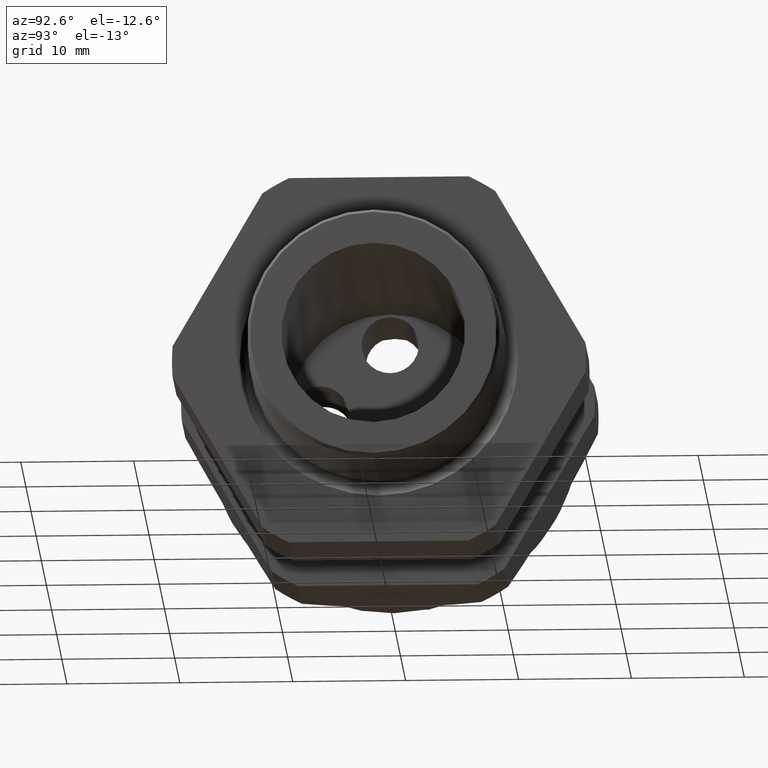
[diagram: clean part render]
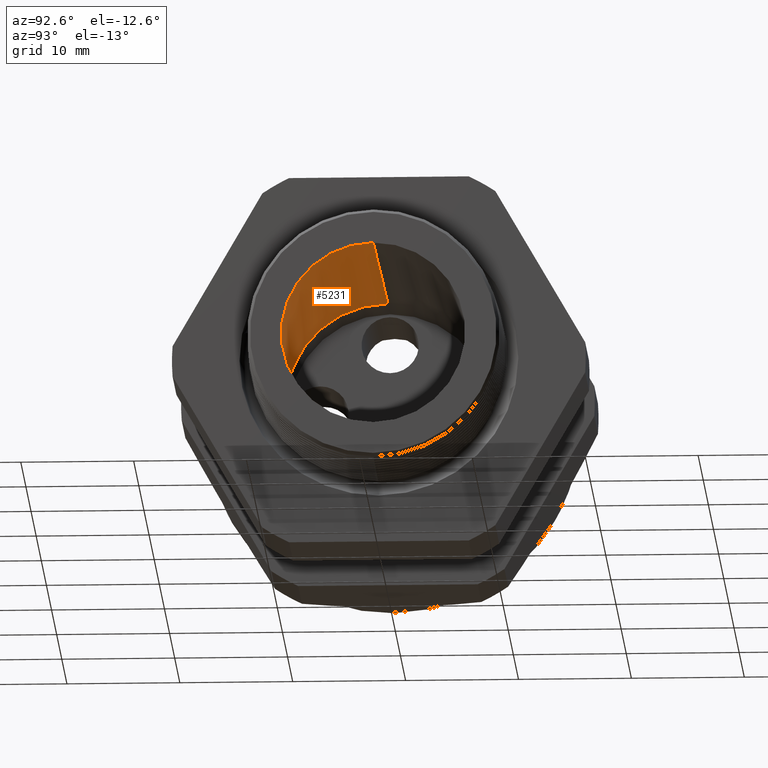
[diagram: same view with one face highlighted and labeled with its STEP entity id]
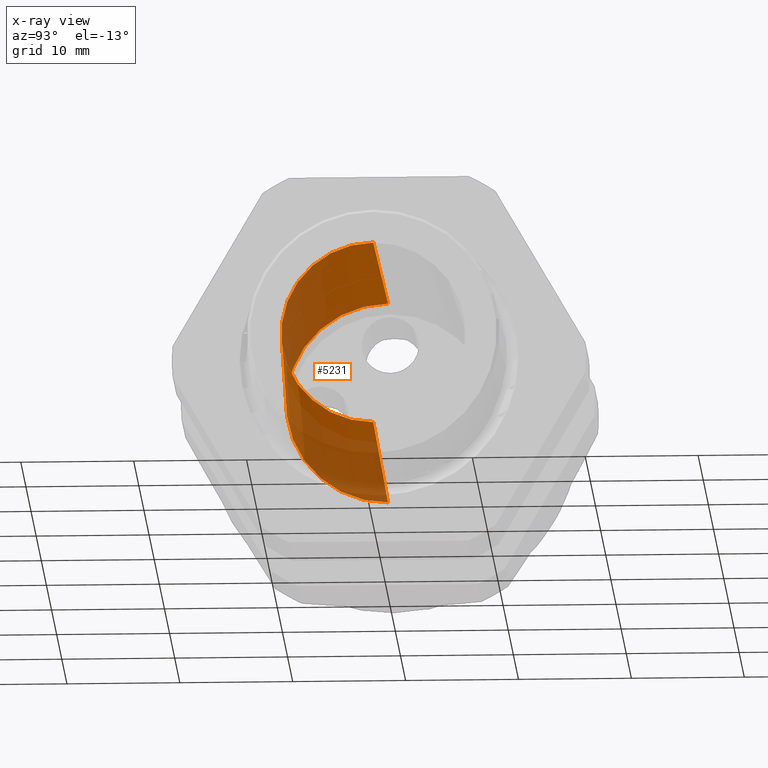
[diagram: x-ray of the same camera — body ghosted, the highlighted face saturated]
A machine part, auxiliary view. The second image highlights one B-rep face of the part: STEP entity #5231.
The next image is the same camera in x-ray: the body ghosted, the highlighted face saturated — about 39% of this face is hidden behind the body in this view.
In plain terms, the highlighted conical surface has half-angle 1.753 deg.
Its self-contained STEP definition (entity closure, byte-faithful):
#2943 = DIRECTION ( 'NONE',  ( 0.0000000000000000000, 0.0000000000000000000, -1.000000000000000000 ) ) ;
#2944 = DIRECTION ( 'NONE',  ( 1.000000000000000000, 0.0000000000000000000, 0.0000000000000000000 ) ) ;
#2945 = CARTESIAN_POINT ( 'NONE',  ( -1.010314960629921100, 0.0000000000000000000, 0.0000000000000000000 ) ) ;
#2946 = AXIS2_PLACEMENT_3D ( 'NONE', #2945, #2944, #2943 ) ;
#2947 = CIRCLE ( 'NONE', #2946, 0.3549999999999999800 ) ;
#2950 = DIRECTION ( 'NONE',  ( -0.9995318591926351000, 0.0000000000000000000, 0.03059513783126741000 ) ) ;
#2951 = VECTOR ( 'NONE', #2950, 39.37007874015748900 ) ;
#2952 = CARTESIAN_POINT ( 'NONE',  ( -1.010314960629921100, 0.0000000000000000000, 0.3549999999999999800 ) ) ;
#2953 = LINE ( 'NONE', #2952, #2951 ) ;
#2954 = CARTESIAN_POINT ( 'NONE',  ( -1.010314960629921100, 4.347496136973103500E-017, 0.3549999999999999800 ) ) ;
#3741 = CARTESIAN_POINT ( 'NONE',  ( -1.010314960629921100, 0.0000000000000000000, -0.3549999999999999800 ) ) ;
#3742 = DIRECTION ( 'NONE',  ( -0.9995318591926351000, 3.746823761453372400E-018, -0.03059513783126741000 ) ) ;
#3743 = VECTOR ( 'NONE', #3742, 39.37007874015748900 ) ;
#3744 = CARTESIAN_POINT ( 'NONE',  ( -1.010314960629921100, 4.347496136973103500E-017, -0.3549999999999999800 ) ) ;
#3745 = LINE ( 'NONE', #3744, #3743 ) ;
#3746 = CARTESIAN_POINT ( 'NONE',  ( 0.1200000000000000200, 4.135642411978520400E-017, -0.3204016610924743100 ) ) ;
#3747 = CARTESIAN_POINT ( 'NONE',  ( 0.1200000000000000200, 0.0000000000000000000, 0.3204016610924743100 ) ) ;
#3748 = DIRECTION ( 'NONE',  ( 0.0000000000000000000, 0.0000000000000000000, -1.000000000000000000 ) ) ;
#3749 = DIRECTION ( 'NONE',  ( 1.000000000000000000, 0.0000000000000000000, 0.0000000000000000000 ) ) ;
#3750 = AXIS2_PLACEMENT_3D ( 'NONE', #3757, #3749, #3748 ) ;
#3751 = CIRCLE ( 'NONE', #3750, 0.3204016610924743100 ) ;
#3752 = DIRECTION ( 'NONE',  ( 0.0000000000000000000, 0.0000000000000000000, 1.000000000000000000 ) ) ;
#3753 = DIRECTION ( 'NONE',  ( -1.000000000000000000, 0.0000000000000000000, 0.0000000000000000000 ) ) ;
#3754 = CARTESIAN_POINT ( 'NONE',  ( -1.010314960629921100, 0.0000000000000000000, 0.0000000000000000000 ) ) ;
#3755 = AXIS2_PLACEMENT_3D ( 'NONE', #3754, #3753, #3752 ) ;
#3756 = CONICAL_SURFACE ( 'NONE', #3755, 0.3549999999999999800, 0.03059991300296905500 ) ;
#3757 = CARTESIAN_POINT ( 'NONE',  ( 0.1200000000000000200, 0.0000000000000000000, 0.0000000000000000000 ) ) ;
#3758 = FACE_OUTER_BOUND ( 'NONE', #5232, .T. ) ;
#4827 = ORIENTED_EDGE ( 'NONE', *, *, #4829, .F. ) ;
#4828 = VERTEX_POINT ( 'NONE', #2954 ) ;
#4829 = EDGE_CURVE ( 'NONE', #5235, #4828, #2953, .T. ) ;
#4834 = EDGE_CURVE ( 'NONE', #4828, #5239, #2947, .T. ) ;
#5231 = ADVANCED_FACE ( 'NONE', ( #3758 ), #3756, .F. ) ;
#5232 = EDGE_LOOP ( 'NONE', ( #5233, #5237, #5240, #4827 ) ) ;
#5233 = ORIENTED_EDGE ( 'NONE', *, *, #5234, .T. ) ;
#5234 = EDGE_CURVE ( 'NONE', #5235, #5236, #3751, .T. ) ;
#5235 = VERTEX_POINT ( 'NONE', #3747 ) ;
#5236 = VERTEX_POINT ( 'NONE', #3746 ) ;
#5237 = ORIENTED_EDGE ( 'NONE', *, *, #5238, .T. ) ;
#5238 = EDGE_CURVE ( 'NONE', #5236, #5239, #3745, .T. ) ;
#5239 = VERTEX_POINT ( 'NONE', #3741 ) ;
#5240 = ORIENTED_EDGE ( 'NONE', *, *, #4834, .F. ) ;